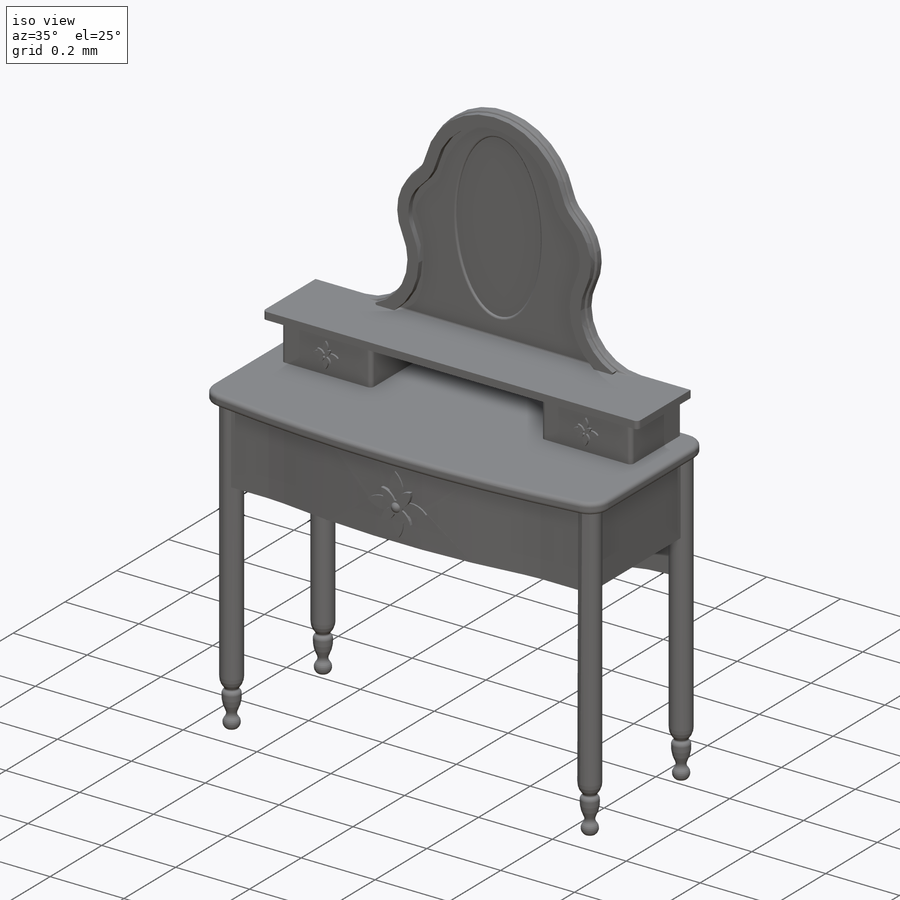
[diagram: iso view]
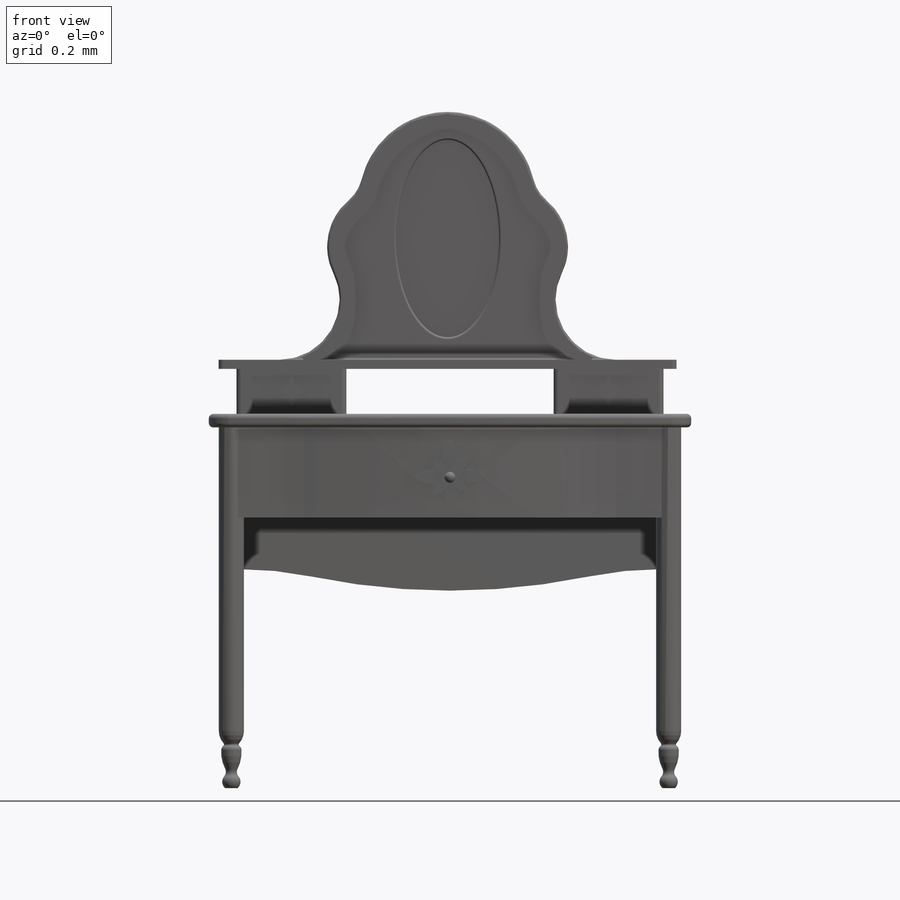
[diagram: front view]
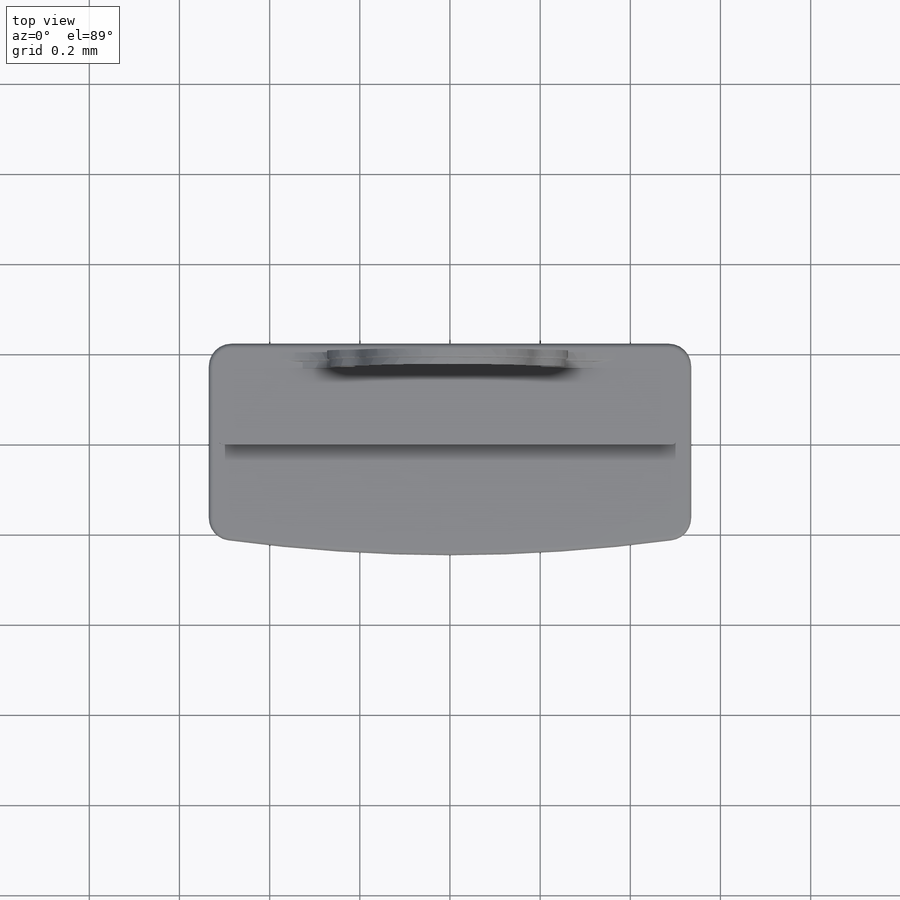
[diagram: top view]
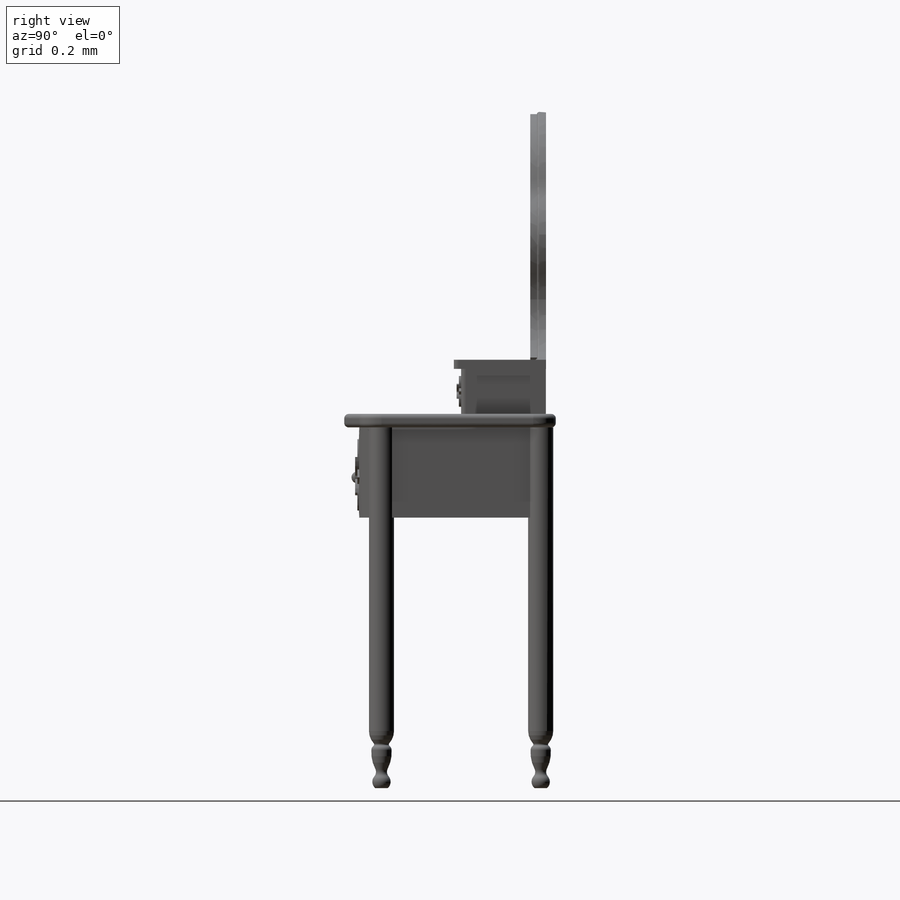
[diagram: right view]
SOLIDWORKS PART (.sldprt)
format: sldprt  version: not decoded by parser v0  size: 851,456 bytes
history: native  units: mm
features: sketch x16, extrude x12, plane x4, fillet x4, mirror x3, material x1, cut_revolve x1, cut_extrude x1, revolve x1 (+9 scaffold rows collapsed)
feature tree (52):
  scaffold x9  (default folders/planes/origin — collapsed)
  material  "材质 <未指定>"
  plane  "前视基准面"
  plane  "上视基准面"
  plane  "右视基准面"
  sketch  "草图1"  dims[D1=1.0mm D2=0.4mm]
  extrude  "凸台-拉伸1"  Depth=0.2mm
  sketch  "草图2"  dims[D1=~0.034953mm D2=0.035mm D3=0.01mm D4=0.02mm]
  extrude  "凸台-拉伸2"  Depth=0.03mm
  fillet  "圆角2"  Radius=0.05mm
  fillet  "圆角3"  Radius=0.01mm
  sketch  "草图3"
  extrude  "凸台-拉伸3"  Depth=0.8mm
  plane  "基准面1"
  sketch  "草图4"
  cut_revolve  "切除-旋转4"  Angle=360deg
  mirror  "镜向2"
  mirror  "镜向3"
  sketch  "草图5"
  cut_extrude  "切除-拉伸1"  Depth=0.35mm
  sketch  "草图6"
  extrude  "凸台-拉伸4"  Depth=0.03mm
  sketch  "草图7"
  extrude  "凸台-拉伸5"  Depth=0.005mm
  sketch  "草图8"
  revolve  "旋转4"  Angle=360deg
  sketch  "草图9"
  extrude  "凸台-拉伸7"  Depth=0.1mm
  sketch  "草图10"
  extrude  "凸台-拉伸8"  Depth=0.02mm
  fillet  "圆角4"  Radius=0.01mm
  sketch  "草图11"
  extrude  "凸台-拉伸9"  Depth=0.005mm
  sketch  "草图12"
  extrude  "凸台-拉伸10"  Depth=0.005mm
  mirror  "镜向4"
  sketch  "草图13"
  extrude  "凸台-拉伸11"  Depth=0.02mm
  sketch  "草图14"
  extrude  "凸台-拉伸12"  Depth=0.015mm
  fillet  "圆角5"  Radius=0.005mm
  sketch  "草图15"  dims[D1=0.015mm D5=0.03mm D6=10.0mm D7=5.0mm]
  sketch  "草图16"
  extrude  "凸台-拉伸13"  Depth=0.015mm
decode coverage: 22 of 38 modeling features carry decoded parameters
note: ~ marks probable driven/reference dimensions
note: suppression state not decoded; provenance and decode notes live in map.json
